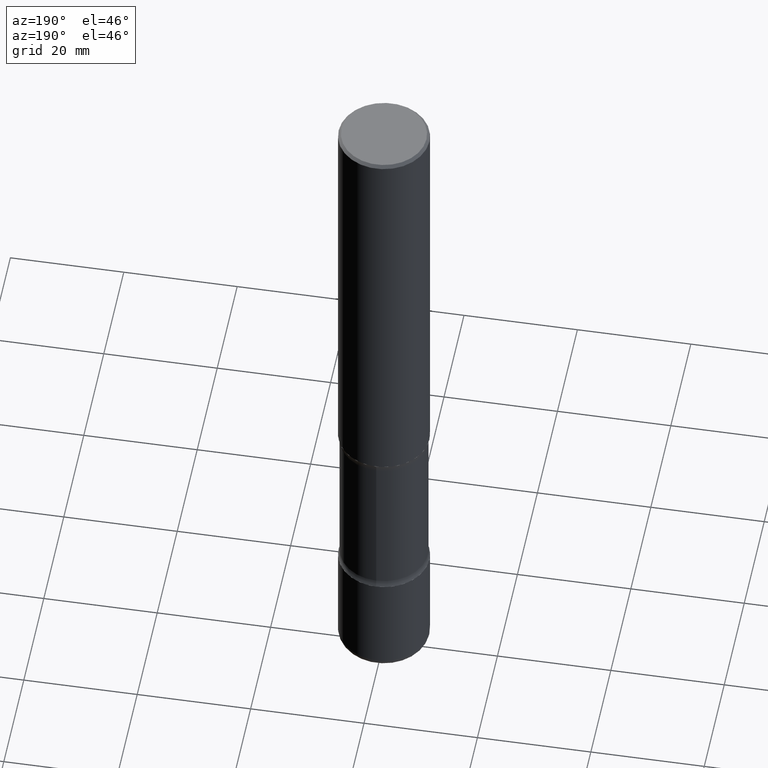
[diagram: clean part render]
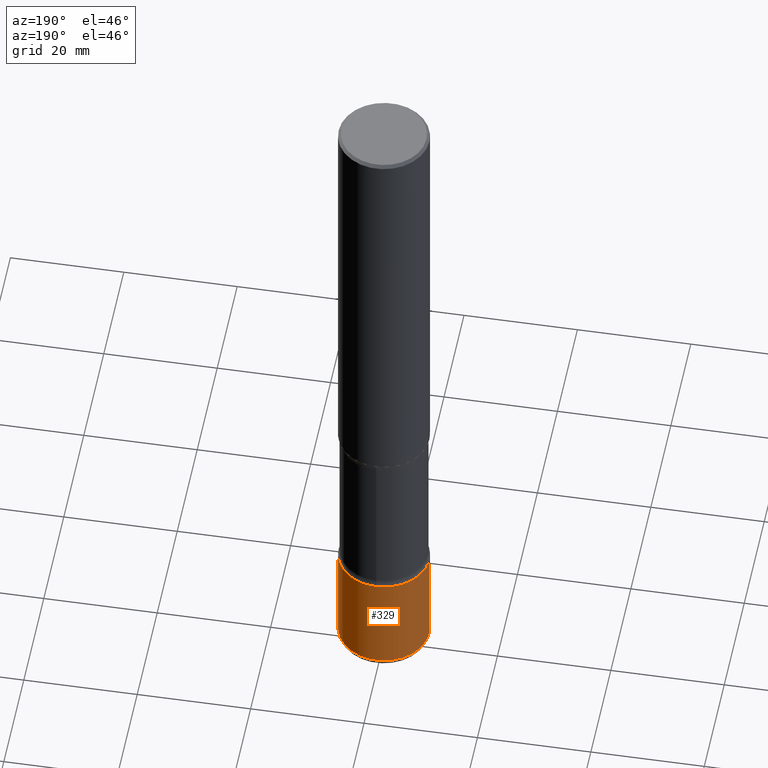
[diagram: same view with one face highlighted and labeled with its STEP entity id]
A machine part, auxiliary view. The second image highlights one B-rep face of the part: STEP entity #329.
In plain terms, the highlighted cylindrical surface (partial cylindrical patch) has radius 7.9997 mm, axis along (-0, 0, 1).
Its self-contained STEP definition (entity closure, byte-faithful):
#11 = DIRECTION ( 'NONE',  ( -2.445468806185136877E-29, 3.491481338843145188E-15, 1.000000000000000000 ) ) ;
#67 = CARTESIAN_POINT ( 'NONE',  ( -0.3149500000000002298, 2.237854346276437168E-15, -1.549218606675783517E-29 ) ) ;
#73 = ORIENTED_EDGE ( 'NONE', *, *, #128, .T. ) ;
#85 = DIRECTION ( 'NONE',  ( -2.445468806185136597E-29, 3.491481338843145583E-15, 1.000000000000000000 ) ) ;
#97 = FACE_OUTER_BOUND ( 'NONE', #159, .T. ) ;
#98 = DIRECTION ( 'NONE',  ( -2.445468806185136597E-29, 3.491481338843145583E-15, 1.000000000000000000 ) ) ;
#99 = ORIENTED_EDGE ( 'NONE', *, *, #353, .T. ) ;
#104 = CARTESIAN_POINT ( 'NONE',  ( 0.3149500000000002298, -2.199284095337291449E-15, 1.535751875536930971E-29 ) ) ;
#128 = EDGE_CURVE ( 'NONE', #367, #266, #413, .T. ) ;
#159 = EDGE_LOOP ( 'NONE', ( #73, #99, #558, #237 ) ) ;
#165 = AXIS2_PLACEMENT_3D ( 'NONE', #529, #98, #524 ) ;
#191 = CARTESIAN_POINT ( 'NONE',  ( 0.000000000000000000, 0.000000000000000000, 0.000000000000000000 ) ) ;
#221 = DIRECTION ( 'NONE',  ( -2.445468806185136877E-29, 3.491481338843145188E-15, 1.000000000000000000 ) ) ;
#226 = CARTESIAN_POINT ( 'NONE',  ( -0.3149500000000002853, -1.472480944222522007E-14, -4.858300000000000729 ) ) ;
#230 = EDGE_CURVE ( 'NONE', #367, #420, #319, .T. ) ;
#237 = ORIENTED_EDGE ( 'NONE', *, *, #230, .F. ) ;
#244 = CARTESIAN_POINT ( 'NONE',  ( -0.3149500000000001743, -1.346019490129623240E-14, -4.133899999999999686 ) ) ;
#250 = CARTESIAN_POINT ( 'NONE',  ( 1.010932349788873450E-28, -1.443343470664368071E-14, -4.133899999999999686 ) ) ;
#251 = CIRCLE ( 'NONE', #378, 0.3149500000000001743 ) ;
#266 = VERTEX_POINT ( 'NONE', #226 ) ;
#316 = AXIS2_PLACEMENT_3D ( 'NONE', #191, #441, #410 ) ;
#319 = LINE ( 'NONE', #104, #330 ) ;
#329 = ADVANCED_FACE ( 'NONE', ( #97 ), #522, .T. ) ;
#330 = VECTOR ( 'NONE', #221, 39.37007874015748143 ) ;
#353 = EDGE_CURVE ( 'NONE', #266, #496, #443, .T. ) ;
#367 = VERTEX_POINT ( 'NONE', #493 ) ;
#378 = AXIS2_PLACEMENT_3D ( 'NONE', #250, #85, #557 ) ;
#410 = DIRECTION ( 'NONE',  ( 1.000000000000000000, -6.982962677686267499E-15, 4.876176775795935232E-29 ) ) ;
#413 = CIRCLE ( 'NONE', #165, 0.3149500000000002853 ) ;
#420 = VERTEX_POINT ( 'NONE', #456 ) ;
#441 = DIRECTION ( 'NONE',  ( -2.445468806185136597E-29, 3.491481338843145583E-15, 1.000000000000000000 ) ) ;
#443 = LINE ( 'NONE', #67, #556 ) ;
#456 = CARTESIAN_POINT ( 'NONE',  ( 0.3149500000000001743, -1.663271880198097216E-14, -4.133899999999999686 ) ) ;
#493 = CARTESIAN_POINT ( 'NONE',  ( 0.3149500000000002853, -1.916194788383894750E-14, -4.858300000000000729 ) ) ;
#496 = VERTEX_POINT ( 'NONE', #244 ) ;
#522 = CYLINDRICAL_SURFACE ( 'NONE', #316, 0.3149500000000002298 ) ;
#524 = DIRECTION ( 'NONE',  ( 1.000000000000000000, -6.982962677686263555E-15, 0.000000000000000000 ) ) ;
#529 = CARTESIAN_POINT ( 'NONE',  ( 1.188082110108925210E-28, -1.696266378850165605E-14, -4.858300000000000729 ) ) ;
#541 = EDGE_CURVE ( 'NONE', #420, #496, #251, .T. ) ;
#556 = VECTOR ( 'NONE', #11, 39.37007874015748143 ) ;
#557 = DIRECTION ( 'NONE',  ( 1.000000000000000000, -6.982962677686265922E-15, 0.000000000000000000 ) ) ;
#558 = ORIENTED_EDGE ( 'NONE', *, *, #541, .F. ) ;